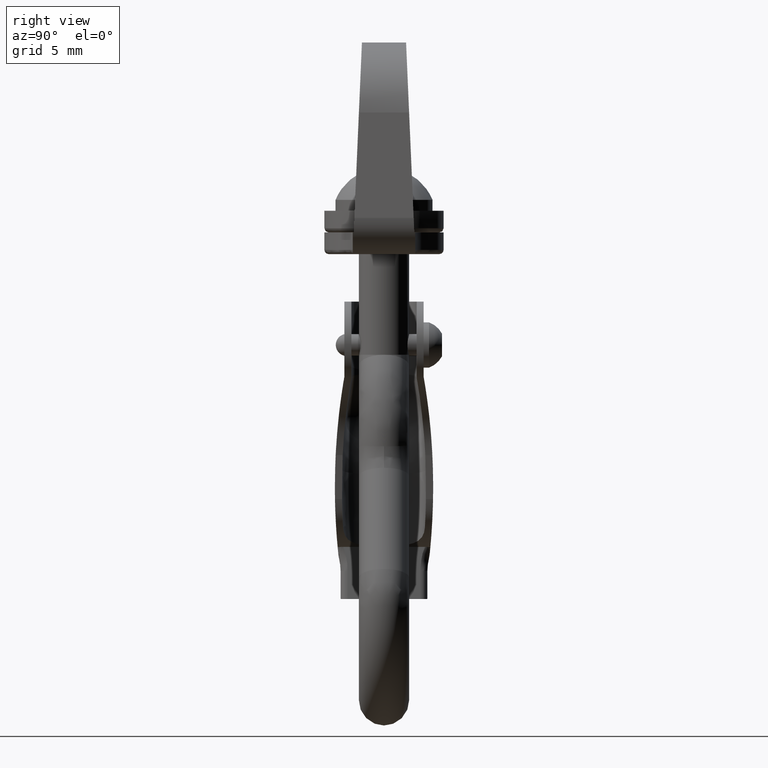
[diagram: clean part render]
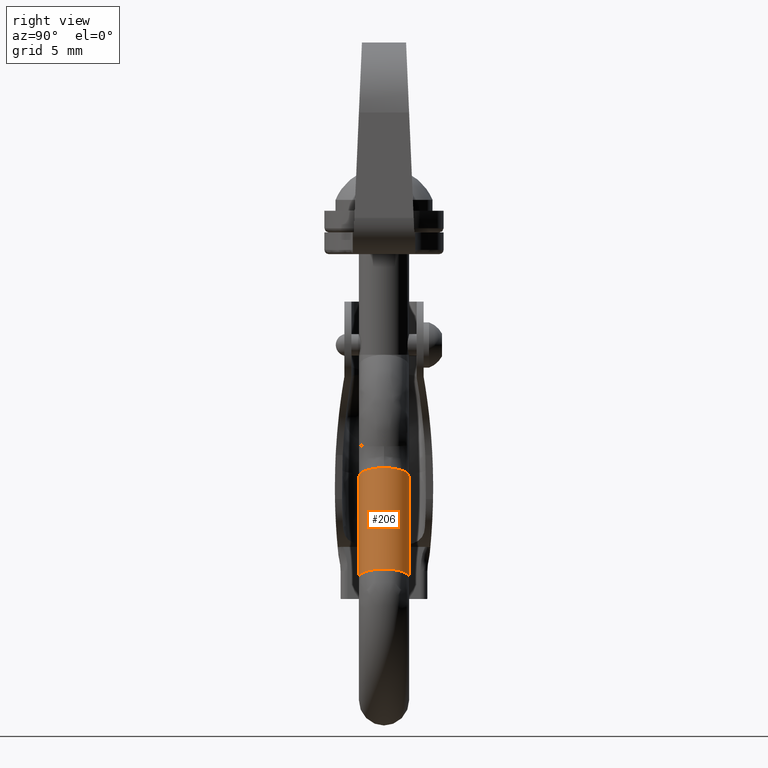
[diagram: same view with one face highlighted and labeled with its STEP entity id]
A machine part, right view. The second image highlights one B-rep face of the part: STEP entity #206.
In plain terms, the highlighted cylindrical surface (edge-blend (fillet) strip) has radius 1.8 mm, axis along (-0.3435, 0, 0.9391).
Its self-contained STEP definition (entity closure, byte-faithful):
#206=ADVANCED_FACE('',(#882),#881,.T.);
#881=CYLINDRICAL_SURFACE('',#2519,1.80000000000E+00);
#882=FACE_OUTER_BOUND('',#2520,.T.);
#2516=CARTESIAN_POINT('',(-1.39400230796E+00,1.67834496301E-13,-5.09941893401E-01));
#2517=DIRECTION('',(-3.43546504209E-01,-0.00000000000E+00,9.39135666156E-01));
#2518=DIRECTION('',(-9.39135666156E-01,1.22464679915E-16,-3.43546504209E-01));
#2519=AXIS2_PLACEMENT_3D('',#2516,#2517,#2518);
#2520=EDGE_LOOP('',(#4066,#4067,#4068,#4069,#4070));
#4066=ORIENTED_EDGE('',*,*,#4783,.T.);
#4067=ORIENTED_EDGE('',*,*,#4781,.T.);
#4068=ORIENTED_EDGE('',*,*,#4753,.F.);
#4069=ORIENTED_EDGE('',*,*,#4743,.F.);
#4070=ORIENTED_EDGE('',*,*,#4761,.F.);
#4743=EDGE_CURVE('',#5971,#5978,#5979,.T.);
#4753=EDGE_CURVE('',#5978,#6044,#6045,.T.);
#4761=EDGE_CURVE('',#6092,#5971,#6099,.T.);
#4781=EDGE_CURVE('',#6227,#6044,#6228,.T.);
#4783=EDGE_CURVE('',#6092,#6227,#6240,.T.);
#5971=VERTEX_POINT('',#8617);
#5978=VERTEX_POINT('',#8622);
#5979=CIRCLE('',#8626,1.80000000000E+00);
#6044=VERTEX_POINT('',#8690);
#6045=LINE('',#8691,#8692);
#6092=VERTEX_POINT('',#8723);
#6099=LINE('',#8728,#8729);
#6227=VERTEX_POINT('',#8809);
#6228=CIRCLE('',#8813,1.80000000000E+00);
#6240=CIRCLE('',#8820,1.80000000000E+00);
#8617=CARTESIAN_POINT('',(4.52296008966E+00,1.80000000000E+00,-1.66848421029E+01));
#8622=CARTESIAN_POINT('',(4.52296008966E+00,-1.80000000000E+00,-1.66848421029E+01));
#8623=CARTESIAN_POINT('',(4.52296008966E+00,1.67834496301E-13,-1.66848421029E+01));
#8624=DIRECTION('',(3.43546504209E-01,0.00000000000E+00,-9.39135666156E-01));
#8625=DIRECTION('',(-1.72510725581E-16,1.00000000000E+00,-6.31063847831E-17));
#8626=AXIS2_PLACEMENT_3D('',#8623,#8624,#8625);
#8690=CARTESIAN_POINT('',(1.86761324685E+00,-1.80000000000E+00,-9.42605502303E+00));
#8691=CARTESIAN_POINT('',(4.52296008966E+00,-1.80000000000E+00,-1.66848421029E+01));
#8692=VECTOR('',#8693,7.72922096509E+00);
#8693=DIRECTION('',(-3.43546504209E-01,0.00000000000E+00,9.39135666156E-01));
#8723=CARTESIAN_POINT('',(1.86761324685E+00,1.80000000000E+00,-9.42605502303E+00));
#8728=CARTESIAN_POINT('',(1.86761324685E+00,1.80000000000E+00,-9.42605502303E+00));
#8729=VECTOR('',#8730,7.72922096509E+00);
#8730=DIRECTION('',(3.43546504209E-01,0.00000000000E+00,-9.39135666156E-01));
#8809=CARTESIAN_POINT('',(3.55805744593E+00,-3.14693352550E-10,-8.80767131545E+00));
#8810=CARTESIAN_POINT('',(1.86761324685E+00,1.67834496301E-13,-9.42605502303E+00));
#8811=DIRECTION('',(3.43546504209E-01,0.00000000000E+00,-9.39135666156E-01));
#8812=DIRECTION('',(-1.72510725581E-16,1.00000000000E+00,-6.31063847831E-17));
#8813=AXIS2_PLACEMENT_3D('',#8810,#8811,#8812);
#8817=CARTESIAN_POINT('',(1.86761324685E+00,1.67834496301E-13,-9.42605502303E+00));
#8818=DIRECTION('',(3.43546504209E-01,0.00000000000E+00,-9.39135666156E-01));
#8819=DIRECTION('',(-1.72510725581E-16,1.00000000000E+00,-6.31063847831E-17));
#8820=AXIS2_PLACEMENT_3D('',#8817,#8818,#8819);